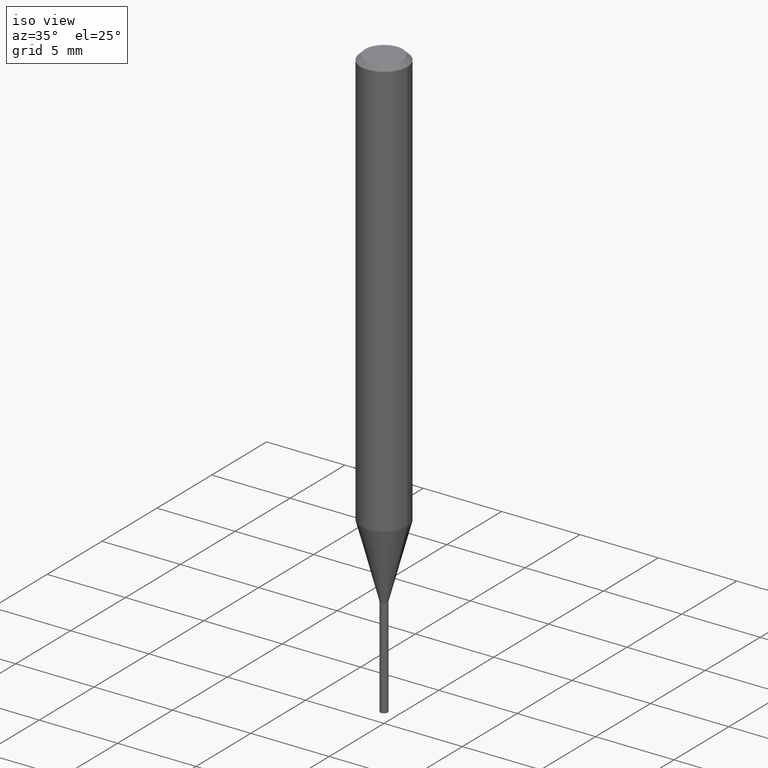
[diagram: clean part render]
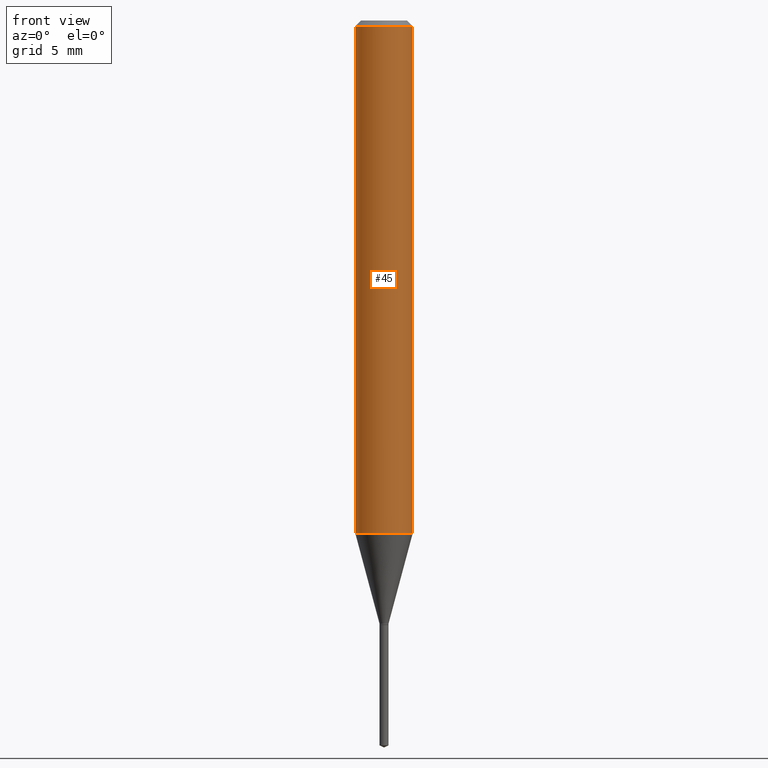
[diagram: tour spotlight — one face highlighted and labeled with its STEP entity id]
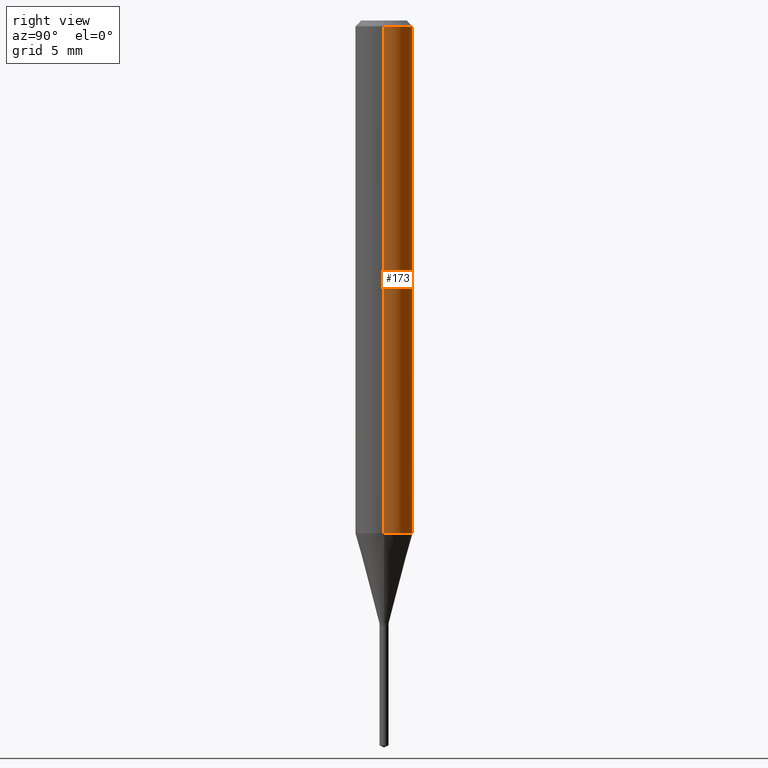
[diagram: tour spotlight — one face highlighted and labeled with its STEP entity id]
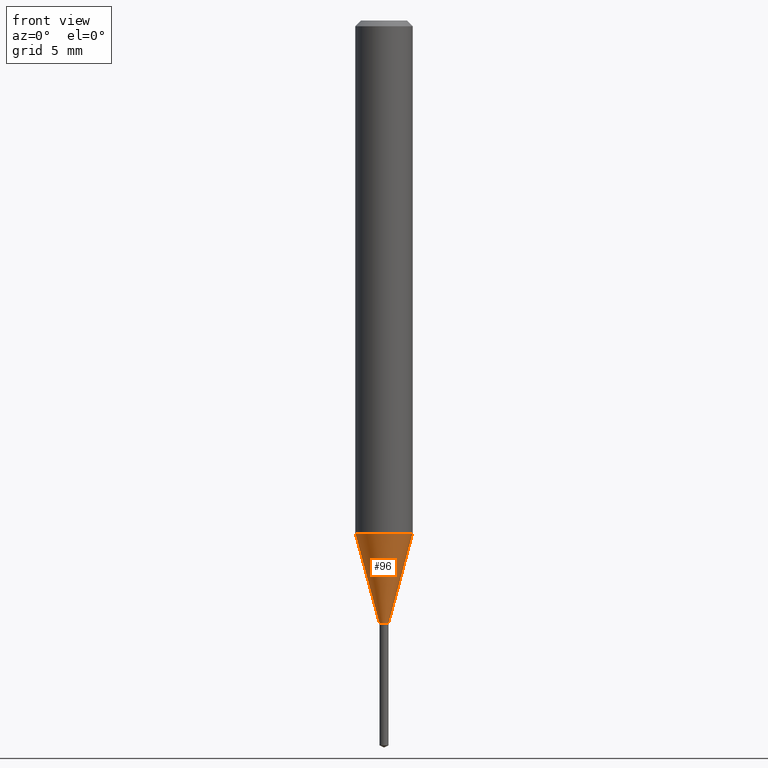
[diagram: tour spotlight — one face highlighted and labeled with its STEP entity id]
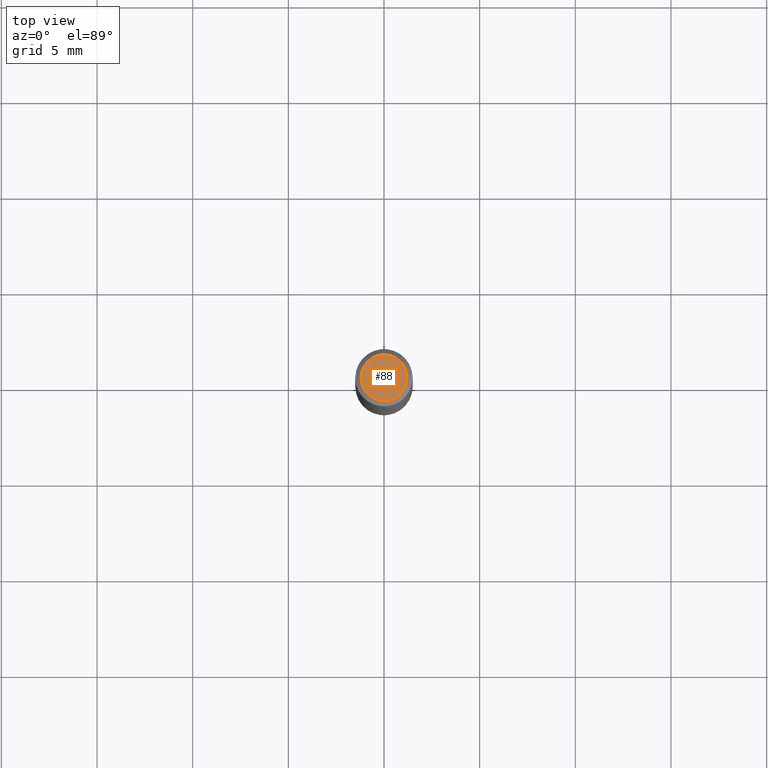
[diagram: tour spotlight — one face highlighted and labeled with its STEP entity id]
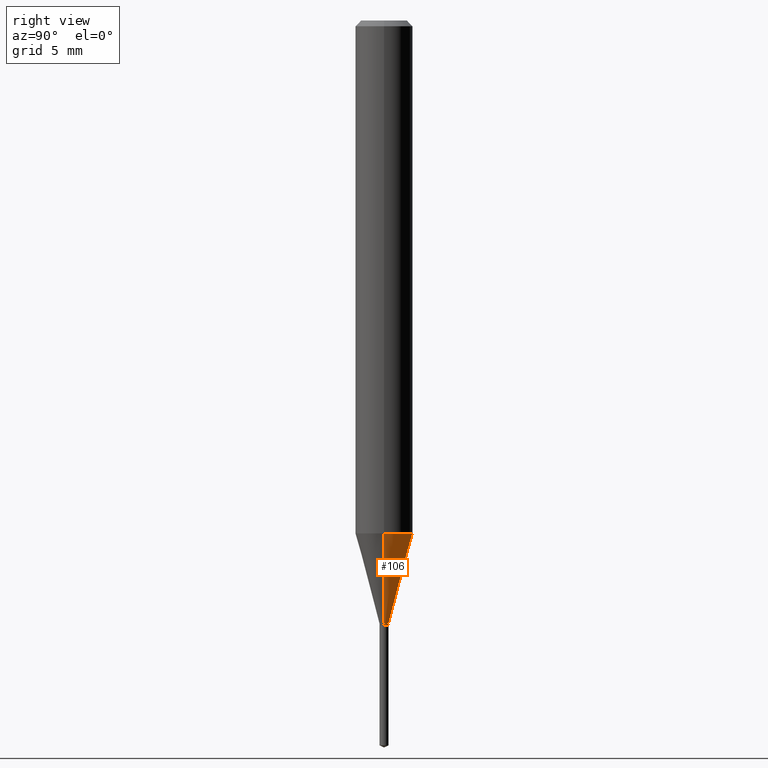
[diagram: tour spotlight — one face highlighted and labeled with its STEP entity id]
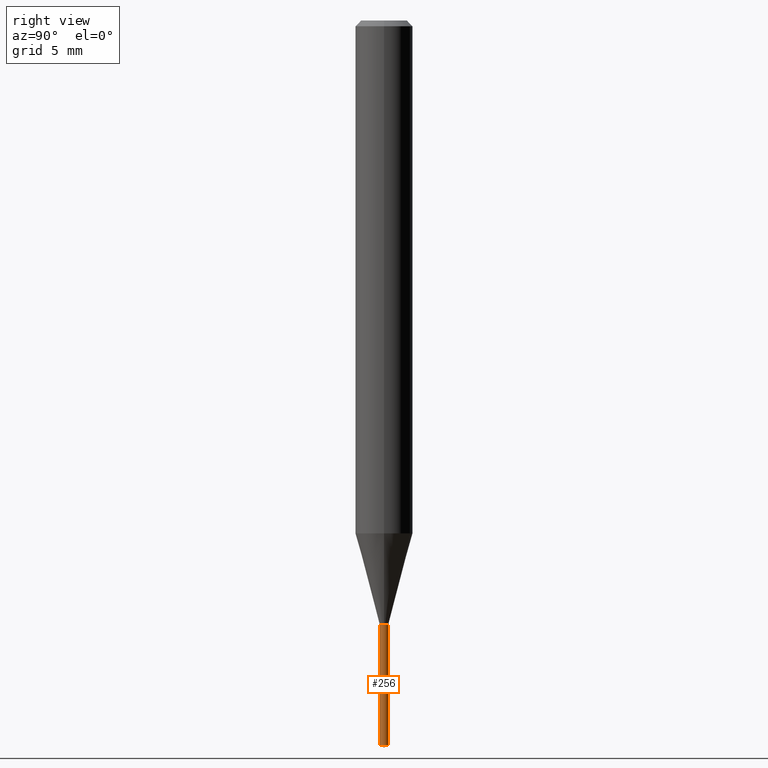
[diagram: tour spotlight — one face highlighted and labeled with its STEP entity id]
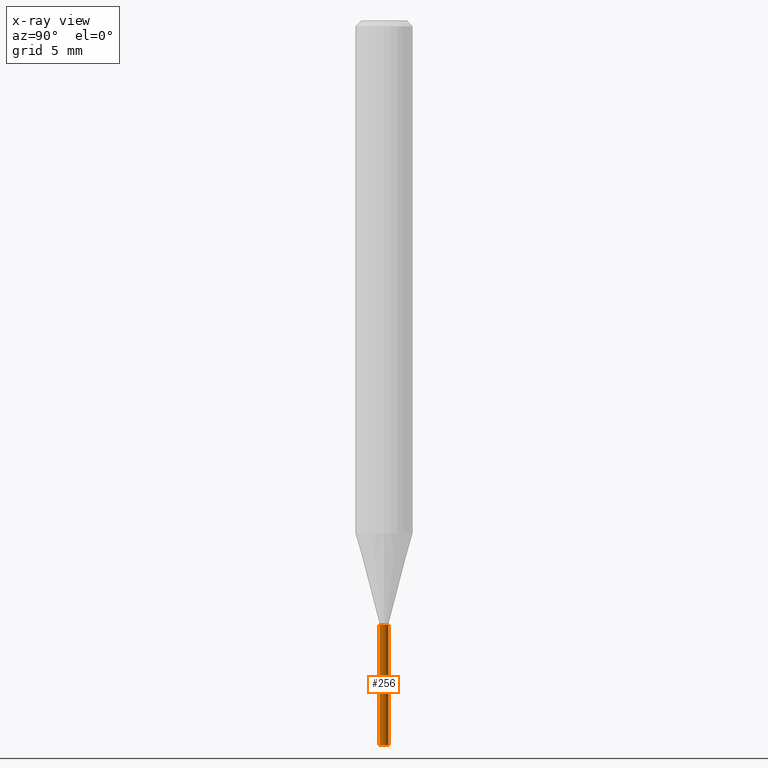
[diagram: x-ray of the same camera — body ghosted, this tour face saturated]
A machine part: a face-by-face anatomy tour. The part has 17 B-rep faces; the first image is the clean iso view, then the 6 largest visible faces are spotlighted one at a time (largest first), each with its STEP entity span.

Face 1 — front view, entity #45. In plain terms, the highlighted cylindrical surface (edge-blend (fillet) strip) has radius 1.4999 mm, axis along (-0, 0, 1).
Definition (entity closure, byte-faithful):
#11 = CARTESIAN_POINT ( 'NONE',  ( 0.000000000000000000, 0.000000000000000000, 0.000000000000000000 ) ) ;
#16 = CARTESIAN_POINT ( 'NONE',  ( 0.05905000000000006771, -4.123439461173745257E-16, 2.879382386107503723E-30 ) ) ;
#31 = LINE ( 'NONE', #176, #233 ) ;
#37 = CARTESIAN_POINT ( 'NONE',  ( 2.888098660104664204E-31, -4.123439461173780263E-17, -0.01181000000000007218 ) ) ;
#45 = ADVANCED_FACE ( 'NONE', ( #77 ), #349, .T. ) ;
#50 = ORIENTED_EDGE ( 'NONE', *, *, #448, .T. ) ;
#53 = ORIENTED_EDGE ( 'NONE', *, *, #426, .T. ) ;
#54 = DIRECTION ( 'NONE',  ( -2.445468806185136877E-29, 3.491481338843145188E-15, 1.000000000000000000 ) ) ;
#71 = VECTOR ( 'NONE', #54, 39.37007874015748143 ) ;
#77 = FACE_OUTER_BOUND ( 'NONE', #156, .T. ) ;
#86 = VERTEX_POINT ( 'NONE', #168 ) ;
#133 = AXIS2_PLACEMENT_3D ( 'NONE', #11, #158, #307 ) ;
#156 = EDGE_LOOP ( 'NONE', ( #476, #53, #50, #434 ) ) ;
#158 = DIRECTION ( 'NONE',  ( -2.445468806185136597E-29, 3.491481338843145583E-15, 1.000000000000000000 ) ) ;
#168 = CARTESIAN_POINT ( 'NONE',  ( -0.05905000000000013710, -3.265487090077642716E-15, -1.055443869783069699 ) ) ;
#176 = CARTESIAN_POINT ( 'NONE',  ( -0.05905000000000006771, 4.195754854663396409E-16, -2.904631170795525045E-30 ) ) ;
#177 = EDGE_CURVE ( 'NONE', #86, #236, #31, .T. ) ;
#184 = DIRECTION ( 'NONE',  ( -2.445468806185136597E-29, 3.491481338843145583E-15, 1.000000000000000000 ) ) ;
#200 = DIRECTION ( 'NONE',  ( 1.000000000000000000, -6.982962677686264344E-15, 0.000000000000000000 ) ) ;
#206 = AXIS2_PLACEMENT_3D ( 'NONE', #316, #285, #200 ) ;
#210 = CIRCLE ( 'NONE', #206, 0.05905000000000013710 ) ;
#225 = VERTEX_POINT ( 'NONE', #455 ) ;
#233 = VECTOR ( 'NONE', #328, 39.37007874015748143 ) ;
#236 = VERTEX_POINT ( 'NONE', #424 ) ;
#244 = CIRCLE ( 'NONE', #489, 0.05904999999999999832 ) ;
#274 = VERTEX_POINT ( 'NONE', #452 ) ;
#276 = LINE ( 'NONE', #16, #71 ) ;
#285 = DIRECTION ( 'NONE',  ( -2.445468806185136597E-29, 3.491481338843145583E-15, 1.000000000000000000 ) ) ;
#305 = EDGE_CURVE ( 'NONE', #236, #225, #244, .T. ) ;
#307 = DIRECTION ( 'NONE',  ( 1.000000000000000000, -6.982962677686266711E-15, 4.876176775795936353E-29 ) ) ;
#316 = CARTESIAN_POINT ( 'NONE',  ( 2.581055060233824275E-29, -3.685062575543982998E-15, -1.055443869783069699 ) ) ;
#328 = DIRECTION ( 'NONE',  ( -2.445468806185136877E-29, 3.491481338843145188E-15, 1.000000000000000000 ) ) ;
#339 = DIRECTION ( 'NONE',  ( 1.000000000000000000, -6.982962677686266711E-15, 0.000000000000000000 ) ) ;
#349 = CYLINDRICAL_SURFACE ( 'NONE', #133, 0.05905000000000006771 ) ;
#424 = CARTESIAN_POINT ( 'NONE',  ( -0.05904999999999999832, -1.443572999611519884E-15, -0.01181000000000007218 ) ) ;
#426 = EDGE_CURVE ( 'NONE', #86, #274, #210, .T. ) ;
#434 = ORIENTED_EDGE ( 'NONE', *, *, #305, .F. ) ;
#448 = EDGE_CURVE ( 'NONE', #274, #225, #276, .T. ) ;
#452 = CARTESIAN_POINT ( 'NONE',  ( 0.05905000000000013710, -4.097406521661357129E-15, -1.055443869783069699 ) ) ;
#455 = CARTESIAN_POINT ( 'NONE',  ( 0.05904999999999999832, -4.535783407291118600E-16, -0.01181000000000007218 ) ) ;
#476 = ORIENTED_EDGE ( 'NONE', *, *, #177, .F. ) ;
#489 = AXIS2_PLACEMENT_3D ( 'NONE', #37, #184, #339 ) ;

Face 2 — right view, entity #173. In plain terms, the highlighted cylindrical surface (edge-blend (fillet) strip) has radius 1.4999 mm, axis along (-0, 0, 1).
Definition (entity closure, byte-faithful):
#16 = CARTESIAN_POINT ( 'NONE',  ( 0.05905000000000006771, -4.123439461173745257E-16, 2.879382386107503723E-30 ) ) ;
#20 = CIRCLE ( 'NONE', #403, 0.05905000000000013710 ) ;
#31 = LINE ( 'NONE', #176, #233 ) ;
#43 = ORIENTED_EDGE ( 'NONE', *, *, #333, .T. ) ;
#54 = DIRECTION ( 'NONE',  ( -2.445468806185136877E-29, 3.491481338843145188E-15, 1.000000000000000000 ) ) ;
#60 = CIRCLE ( 'NONE', #438, 0.05904999999999999832 ) ;
#71 = VECTOR ( 'NONE', #54, 39.37007874015748143 ) ;
#86 = VERTEX_POINT ( 'NONE', #168 ) ;
#110 = DIRECTION ( 'NONE',  ( -2.445468806185136597E-29, 3.491481338843145583E-15, 1.000000000000000000 ) ) ;
#168 = CARTESIAN_POINT ( 'NONE',  ( -0.05905000000000013710, -3.265487090077642716E-15, -1.055443869783069699 ) ) ;
#169 = AXIS2_PLACEMENT_3D ( 'NONE', #325, #483, #371 ) ;
#173 = ADVANCED_FACE ( 'NONE', ( #174 ), #250, .T. ) ;
#174 = FACE_OUTER_BOUND ( 'NONE', #430, .T. ) ;
#176 = CARTESIAN_POINT ( 'NONE',  ( -0.05905000000000006771, 4.195754854663396409E-16, -2.904631170795525045E-30 ) ) ;
#177 = EDGE_CURVE ( 'NONE', #86, #236, #31, .T. ) ;
#194 = DIRECTION ( 'NONE',  ( -2.445468806185136597E-29, 3.491481338843145583E-15, 1.000000000000000000 ) ) ;
#197 = ORIENTED_EDGE ( 'NONE', *, *, #246, .F. ) ;
#225 = VERTEX_POINT ( 'NONE', #455 ) ;
#233 = VECTOR ( 'NONE', #328, 39.37007874015748143 ) ;
#236 = VERTEX_POINT ( 'NONE', #424 ) ;
#246 = EDGE_CURVE ( 'NONE', #225, #236, #60, .T. ) ;
#250 = CYLINDRICAL_SURFACE ( 'NONE', #169, 0.05905000000000006771 ) ;
#262 = DIRECTION ( 'NONE',  ( 1.000000000000000000, -6.982962677686264344E-15, 0.000000000000000000 ) ) ;
#274 = VERTEX_POINT ( 'NONE', #452 ) ;
#276 = LINE ( 'NONE', #16, #71 ) ;
#306 = CARTESIAN_POINT ( 'NONE',  ( 2.888098660104664204E-31, -4.123439461173780263E-17, -0.01181000000000007218 ) ) ;
#325 = CARTESIAN_POINT ( 'NONE',  ( 0.000000000000000000, 0.000000000000000000, 0.000000000000000000 ) ) ;
#328 = DIRECTION ( 'NONE',  ( -2.445468806185136877E-29, 3.491481338843145188E-15, 1.000000000000000000 ) ) ;
#333 = EDGE_CURVE ( 'NONE', #274, #86, #20, .T. ) ;
#337 = DIRECTION ( 'NONE',  ( 1.000000000000000000, -6.982962677686266711E-15, 0.000000000000000000 ) ) ;
#368 = ORIENTED_EDGE ( 'NONE', *, *, #177, .T. ) ;
#371 = DIRECTION ( 'NONE',  ( 1.000000000000000000, -6.982962677686266711E-15, 4.876176775795936353E-29 ) ) ;
#382 = CARTESIAN_POINT ( 'NONE',  ( 2.581055060233824275E-29, -3.685062575543982998E-15, -1.055443869783069699 ) ) ;
#403 = AXIS2_PLACEMENT_3D ( 'NONE', #382, #194, #262 ) ;
#424 = CARTESIAN_POINT ( 'NONE',  ( -0.05904999999999999832, -1.443572999611519884E-15, -0.01181000000000007218 ) ) ;
#430 = EDGE_LOOP ( 'NONE', ( #43, #368, #197, #431 ) ) ;
#431 = ORIENTED_EDGE ( 'NONE', *, *, #448, .F. ) ;
#438 = AXIS2_PLACEMENT_3D ( 'NONE', #306, #110, #337 ) ;
#448 = EDGE_CURVE ( 'NONE', #274, #225, #276, .T. ) ;
#452 = CARTESIAN_POINT ( 'NONE',  ( 0.05905000000000013710, -4.097406521661357129E-15, -1.055443869783069699 ) ) ;
#455 = CARTESIAN_POINT ( 'NONE',  ( 0.05904999999999999832, -4.535783407291118600E-16, -0.01181000000000007218 ) ) ;
#483 = DIRECTION ( 'NONE',  ( -2.445468806185136597E-29, 3.491481338843145583E-15, 1.000000000000000000 ) ) ;

Face 3 — front view, entity #96. In plain terms, the highlighted conical surface has half-angle 15 deg.
Definition (entity closure, byte-faithful):
#28 = VECTOR ( 'NONE', #297, 39.37007874015748854 ) ;
#47 = ORIENTED_EDGE ( 'NONE', *, *, #213, .T. ) ;
#56 = VERTEX_POINT ( 'NONE', #352 ) ;
#63 = DIRECTION ( 'NONE',  ( 1.000000000000000000, -6.982962677686254089E-15, 0.000000000000000000 ) ) ;
#68 = CARTESIAN_POINT ( 'NONE',  ( 3.035560429117610036E-29, -4.333975785905995943E-15, -1.241299999999999848 ) ) ;
#86 = VERTEX_POINT ( 'NONE', #168 ) ;
#89 = VERTEX_POINT ( 'NONE', #442 ) ;
#95 = CARTESIAN_POINT ( 'NONE',  ( -0.009249999999999999542, -4.268250582848186814E-15, -1.241299999999999848 ) ) ;
#96 = ADVANCED_FACE ( 'NONE', ( #289 ), #269, .T. ) ;
#136 = DIRECTION ( 'NONE',  ( 1.000000000000000000, -6.982962677686254089E-15, 0.000000000000000000 ) ) ;
#157 = LINE ( 'NONE', #461, #28 ) ;
#165 = DIRECTION ( 'NONE',  ( -2.445468806185136597E-29, 3.491481338843145583E-15, 1.000000000000000000 ) ) ;
#168 = CARTESIAN_POINT ( 'NONE',  ( -0.05905000000000013710, -3.265487090077642716E-15, -1.055443869783069699 ) ) ;
#180 = VECTOR ( 'NONE', #437, 39.37007874015748854 ) ;
#200 = DIRECTION ( 'NONE',  ( 1.000000000000000000, -6.982962677686264344E-15, 0.000000000000000000 ) ) ;
#206 = AXIS2_PLACEMENT_3D ( 'NONE', #316, #285, #200 ) ;
#210 = CIRCLE ( 'NONE', #206, 0.05905000000000013710 ) ;
#213 = EDGE_CURVE ( 'NONE', #89, #274, #157, .T. ) ;
#234 = CIRCLE ( 'NONE', #372, 0.009249999999999999542 ) ;
#238 = ORIENTED_EDGE ( 'NONE', *, *, #426, .F. ) ;
#245 = LINE ( 'NONE', #95, #180 ) ;
#261 = EDGE_LOOP ( 'NONE', ( #412, #456, #47, #238 ) ) ;
#269 = CONICAL_SURFACE ( 'NONE', #377, 0.009249999999999999542, 0.2617993877991499074 ) ;
#274 = VERTEX_POINT ( 'NONE', #452 ) ;
#285 = DIRECTION ( 'NONE',  ( -2.445468806185136597E-29, 3.491481338843145583E-15, 1.000000000000000000 ) ) ;
#289 = FACE_OUTER_BOUND ( 'NONE', #261, .T. ) ;
#297 = DIRECTION ( 'NONE',  ( 0.2588190451025211836, 1.565188264969622559E-15, 0.9659258262890679791 ) ) ;
#316 = CARTESIAN_POINT ( 'NONE',  ( 2.581055060233824275E-29, -3.685062575543982998E-15, -1.055443869783069699 ) ) ;
#352 = CARTESIAN_POINT ( 'NONE',  ( -0.009249999999999999542, -4.272265786387857456E-15, -1.241299999999999848 ) ) ;
#364 = EDGE_CURVE ( 'NONE', #56, #89, #234, .T. ) ;
#372 = AXIS2_PLACEMENT_3D ( 'NONE', #440, #165, #136 ) ;
#377 = AXIS2_PLACEMENT_3D ( 'NONE', #68, #447, #63 ) ;
#401 = EDGE_CURVE ( 'NONE', #56, #86, #245, .T. ) ;
#412 = ORIENTED_EDGE ( 'NONE', *, *, #401, .F. ) ;
#426 = EDGE_CURVE ( 'NONE', #86, #274, #210, .T. ) ;
#437 = DIRECTION ( 'NONE',  ( -0.2588190451025211836, 5.211531920934547886E-15, 0.9659258262890679791 ) ) ;
#440 = CARTESIAN_POINT ( 'NONE',  ( 3.035560429117610036E-29, -4.333975785905995943E-15, -1.241299999999999848 ) ) ;
#442 = CARTESIAN_POINT ( 'NONE',  ( 0.009249999999999999542, -4.398568190674593941E-15, -1.241299999999999848 ) ) ;
#447 = DIRECTION ( 'NONE',  ( -2.445468806185136597E-29, 3.491481338843145583E-15, 1.000000000000000000 ) ) ;
#452 = CARTESIAN_POINT ( 'NONE',  ( 0.05905000000000013710, -4.097406521661357129E-15, -1.055443869783069699 ) ) ;
#456 = ORIENTED_EDGE ( 'NONE', *, *, #364, .T. ) ;
#461 = CARTESIAN_POINT ( 'NONE',  ( 0.009249999999999999542, -4.398568190674593941E-15, -1.241299999999999848 ) ) ;

Face 4 — top view, entity #88. In plain terms, the highlighted planar face has unit normal (0, -0, -1).
Definition (entity closure, byte-faithful):
#18 = AXIS2_PLACEMENT_3D ( 'NONE', #366, #323, #478 ) ;
#21 = DIRECTION ( 'NONE',  ( 1.000000000000000000, -6.982962677686266711E-15, 4.876185090822587894E-29 ) ) ;
#32 = CIRCLE ( 'NONE', #404, 0.04724000000000000421 ) ;
#64 = CIRCLE ( 'NONE', #92, 0.04724000000000000421 ) ;
#72 = CARTESIAN_POINT ( 'NONE',  ( 8.265746106709734507E-48, -1.180129479067563789E-33, -3.380025165646692144E-19 ) ) ;
#88 = ADVANCED_FACE ( 'NONE', ( #475 ), #283, .F. ) ;
#92 = AXIS2_PLACEMENT_3D ( 'NONE', #196, #278, #21 ) ;
#101 = CARTESIAN_POINT ( 'NONE',  ( -0.04724000000000000421, 3.504923541997677355E-16, -3.380025165670481712E-19 ) ) ;
#123 = VERTEX_POINT ( 'NONE', #101 ) ;
#129 = VERTEX_POINT ( 'NONE', #324 ) ;
#153 = DIRECTION ( 'NONE',  ( 1.000000000000000000, -6.982962677686266711E-15, 4.876185090822587894E-29 ) ) ;
#196 = CARTESIAN_POINT ( 'NONE',  ( 8.265746106709734507E-48, -1.180129479067563789E-33, -3.380025165646692144E-19 ) ) ;
#271 = ORIENTED_EDGE ( 'NONE', *, *, #418, .T. ) ;
#278 = DIRECTION ( 'NONE',  ( -2.445468806185136597E-29, 3.491481338843145583E-15, 1.000000000000000000 ) ) ;
#283 = PLANE ( 'NONE',  #18 ) ;
#299 = DIRECTION ( 'NONE',  ( -2.445468806185136597E-29, 3.491481338843145583E-15, 1.000000000000000000 ) ) ;
#304 = EDGE_LOOP ( 'NONE', ( #271, #436 ) ) ;
#314 = EDGE_CURVE ( 'NONE', #129, #123, #32, .T. ) ;
#323 = DIRECTION ( 'NONE',  ( 2.438088387897960049E-29, -3.491481338843145188E-15, -1.000000000000000000 ) ) ;
#324 = CARTESIAN_POINT ( 'NONE',  ( 0.04724000000000000421, -3.852183633974369345E-16, -3.380025165621689721E-19 ) ) ;
#366 = CARTESIAN_POINT ( 'NONE',  ( 4.132873053354867254E-48, -5.900647395337818946E-34, -1.690012582823346072E-19 ) ) ;
#404 = AXIS2_PLACEMENT_3D ( 'NONE', #72, #299, #153 ) ;
#418 = EDGE_CURVE ( 'NONE', #123, #129, #64, .T. ) ;
#436 = ORIENTED_EDGE ( 'NONE', *, *, #314, .T. ) ;
#475 = FACE_OUTER_BOUND ( 'NONE', #304, .T. ) ;
#478 = DIRECTION ( 'NONE',  ( -1.000000000000000000, 6.982962677686265922E-15, -4.876176775795935793E-29 ) ) ;

Face 5 — right view, entity #106. In plain terms, the highlighted conical surface has half-angle 15 deg.
Definition (entity closure, byte-faithful):
#4 = ORIENTED_EDGE ( 'NONE', *, *, #333, .F. ) ;
#19 = EDGE_LOOP ( 'NONE', ( #186, #131, #4, #264 ) ) ;
#20 = CIRCLE ( 'NONE', #403, 0.05905000000000013710 ) ;
#28 = VECTOR ( 'NONE', #297, 39.37007874015748854 ) ;
#48 = CARTESIAN_POINT ( 'NONE',  ( 3.035560429117610036E-29, -4.333975785905995943E-15, -1.241299999999999848 ) ) ;
#56 = VERTEX_POINT ( 'NONE', #352 ) ;
#86 = VERTEX_POINT ( 'NONE', #168 ) ;
#89 = VERTEX_POINT ( 'NONE', #442 ) ;
#95 = CARTESIAN_POINT ( 'NONE',  ( -0.009249999999999999542, -4.268250582848186814E-15, -1.241299999999999848 ) ) ;
#106 = ADVANCED_FACE ( 'NONE', ( #486 ), #488, .T. ) ;
#131 = ORIENTED_EDGE ( 'NONE', *, *, #401, .T. ) ;
#157 = LINE ( 'NONE', #461, #28 ) ;
#168 = CARTESIAN_POINT ( 'NONE',  ( -0.05905000000000013710, -3.265487090077642716E-15, -1.055443869783069699 ) ) ;
#180 = VECTOR ( 'NONE', #437, 39.37007874015748854 ) ;
#182 = AXIS2_PLACEMENT_3D ( 'NONE', #48, #464, #222 ) ;
#186 = ORIENTED_EDGE ( 'NONE', *, *, #327, .T. ) ;
#194 = DIRECTION ( 'NONE',  ( -2.445468806185136597E-29, 3.491481338843145583E-15, 1.000000000000000000 ) ) ;
#213 = EDGE_CURVE ( 'NONE', #89, #274, #157, .T. ) ;
#217 = CIRCLE ( 'NONE', #182, 0.009249999999999999542 ) ;
#222 = DIRECTION ( 'NONE',  ( 1.000000000000000000, -6.982962677686254089E-15, 0.000000000000000000 ) ) ;
#245 = LINE ( 'NONE', #95, #180 ) ;
#262 = DIRECTION ( 'NONE',  ( 1.000000000000000000, -6.982962677686264344E-15, 0.000000000000000000 ) ) ;
#264 = ORIENTED_EDGE ( 'NONE', *, *, #213, .F. ) ;
#274 = VERTEX_POINT ( 'NONE', #452 ) ;
#297 = DIRECTION ( 'NONE',  ( 0.2588190451025211836, 1.565188264969622559E-15, 0.9659258262890679791 ) ) ;
#327 = EDGE_CURVE ( 'NONE', #89, #56, #217, .T. ) ;
#329 = CARTESIAN_POINT ( 'NONE',  ( 3.035560429117610036E-29, -4.333975785905995943E-15, -1.241299999999999848 ) ) ;
#333 = EDGE_CURVE ( 'NONE', #274, #86, #20, .T. ) ;
#352 = CARTESIAN_POINT ( 'NONE',  ( -0.009249999999999999542, -4.272265786387857456E-15, -1.241299999999999848 ) ) ;
#382 = CARTESIAN_POINT ( 'NONE',  ( 2.581055060233824275E-29, -3.685062575543982998E-15, -1.055443869783069699 ) ) ;
#401 = EDGE_CURVE ( 'NONE', #56, #86, #245, .T. ) ;
#403 = AXIS2_PLACEMENT_3D ( 'NONE', #382, #194, #262 ) ;
#411 = DIRECTION ( 'NONE',  ( 1.000000000000000000, -6.982962677686254089E-15, 0.000000000000000000 ) ) ;
#437 = DIRECTION ( 'NONE',  ( -0.2588190451025211836, 5.211531920934547886E-15, 0.9659258262890679791 ) ) ;
#442 = CARTESIAN_POINT ( 'NONE',  ( 0.009249999999999999542, -4.398568190674593941E-15, -1.241299999999999848 ) ) ;
#445 = DIRECTION ( 'NONE',  ( -2.445468806185136597E-29, 3.491481338843145583E-15, 1.000000000000000000 ) ) ;
#452 = CARTESIAN_POINT ( 'NONE',  ( 0.05905000000000013710, -4.097406521661357129E-15, -1.055443869783069699 ) ) ;
#461 = CARTESIAN_POINT ( 'NONE',  ( 0.009249999999999999542, -4.398568190674593941E-15, -1.241299999999999848 ) ) ;
#464 = DIRECTION ( 'NONE',  ( -2.445468806185136597E-29, 3.491481338843145583E-15, 1.000000000000000000 ) ) ;
#482 = AXIS2_PLACEMENT_3D ( 'NONE', #329, #445, #411 ) ;
#486 = FACE_OUTER_BOUND ( 'NONE', #19, .T. ) ;
#488 = CONICAL_SURFACE ( 'NONE', #482, 0.009249999999999999542, 0.2617993877991499074 ) ;

Face 6 — right view, entity #256. An x-ray twin of the same camera follows (body ghosted, this face saturated) — the face is partly hidden behind the body. In plain terms, the highlighted cylindrical surface (edge-blend (fillet) strip) has radius 0.2349 mm, axis along (-0, 0, 1).
Definition (entity closure, byte-faithful):
#12 = VERTEX_POINT ( 'NONE', #73 ) ;
#27 = EDGE_CURVE ( 'NONE', #361, #12, #263, .T. ) ;
#73 = CARTESIAN_POINT ( 'NONE',  ( 6.572520305784577341E-17, 0.009249999999995654060, -1.244099999999999984 ) ) ;
#81 = CIRCLE ( 'NONE', #126, 0.009249999999999999542 ) ;
#87 = VERTEX_POINT ( 'NONE', #319 ) ;
#97 = ORIENTED_EDGE ( 'NONE', *, *, #370, .T. ) ;
#126 = AXIS2_PLACEMENT_3D ( 'NONE', #142, #292, #429 ) ;
#128 = AXIS2_PLACEMENT_3D ( 'NONE', #416, #391, #309 ) ;
#132 = DIRECTION ( 'NONE',  ( -2.442705339250343681E-29, 3.495438780780538895E-15, 1.000000000000000000 ) ) ;
#142 = CARTESIAN_POINT ( 'NONE',  ( 3.042407741774928155E-29, -4.343751933654757151E-15, -1.244099999999999984 ) ) ;
#166 = EDGE_CURVE ( 'NONE', #87, #188, #208, .T. ) ;
#167 = DIRECTION ( 'NONE',  ( -6.982962677686266711E-15, -1.000000000000000000, 0.000000000000000000 ) ) ;
#188 = VERTEX_POINT ( 'NONE', #373 ) ;
#193 = EDGE_CURVE ( 'NONE', #188, #12, #81, .T. ) ;
#208 = LINE ( 'NONE', #369, #279 ) ;
#226 = CYLINDRICAL_SURFACE ( 'NONE', #128, 0.009249999999999999542 ) ;
#227 = CARTESIAN_POINT ( 'NONE',  ( 6.572520305783968439E-17, 0.009249999999995655794, -1.244099999999999984 ) ) ;
#232 = FACE_OUTER_BOUND ( 'NONE', #385, .T. ) ;
#237 = CARTESIAN_POINT ( 'NONE',  ( 6.572520305784574876E-17, 0.009249999999994790167, -1.491786654162066128 ) ) ;
#256 = ADVANCED_FACE ( 'NONE', ( #232 ), #226, .T. ) ;
#263 = LINE ( 'NONE', #227, #287 ) ;
#279 = VECTOR ( 'NONE', #406, 39.37007874015748143 ) ;
#287 = VECTOR ( 'NONE', #423, 39.37007874015748143 ) ;
#288 = CIRCLE ( 'NONE', #320, 0.009249999999999999542 ) ;
#292 = DIRECTION ( 'NONE',  ( -2.442705339250343681E-29, 3.495438780780538895E-15, 1.000000000000000000 ) ) ;
#309 = DIRECTION ( 'NONE',  ( -6.982962677686266711E-15, -1.000000000000000000, 0.000000000000000000 ) ) ;
#319 = CARTESIAN_POINT ( 'NONE',  ( -6.459240476856148916E-17, -0.009250000000005212386, -1.491786654162066128 ) ) ;
#320 = AXIS2_PLACEMENT_3D ( 'NONE', #441, #132, #167 ) ;
#361 = VERTEX_POINT ( 'NONE', #237 ) ;
#369 = CARTESIAN_POINT ( 'NONE',  ( -6.459240476856754120E-17, -0.009250000000004345024, -1.244099999999999984 ) ) ;
#370 = EDGE_CURVE ( 'NONE', #87, #361, #288, .T. ) ;
#373 = CARTESIAN_POINT ( 'NONE',  ( -6.459240476856754120E-17, -0.009250000000004345024, -1.244099999999999984 ) ) ;
#380 = ORIENTED_EDGE ( 'NONE', *, *, #27, .T. ) ;
#385 = EDGE_LOOP ( 'NONE', ( #97, #380, #388, #393 ) ) ;
#388 = ORIENTED_EDGE ( 'NONE', *, *, #193, .F. ) ;
#391 = DIRECTION ( 'NONE',  ( -2.442705339250343681E-29, 3.495438780780538895E-15, 1.000000000000000000 ) ) ;
#393 = ORIENTED_EDGE ( 'NONE', *, *, #166, .F. ) ;
#406 = DIRECTION ( 'NONE',  ( -2.442705339250343401E-29, 3.495438780780538501E-15, 1.000000000000000000 ) ) ;
#416 = CARTESIAN_POINT ( 'NONE',  ( 3.042407741774928155E-29, -4.343751933654757151E-15, -1.244099999999999984 ) ) ;
#423 = DIRECTION ( 'NONE',  ( -2.442705339250343401E-29, 3.495438780780538501E-15, 1.000000000000000000 ) ) ;
#429 = DIRECTION ( 'NONE',  ( -6.982962677686266711E-15, -1.000000000000000000, 0.000000000000000000 ) ) ;
#441 = CARTESIAN_POINT ( 'NONE',  ( 3.647433254357660614E-29, -5.209525470094620805E-15, -1.491786654162066128 ) ) ;